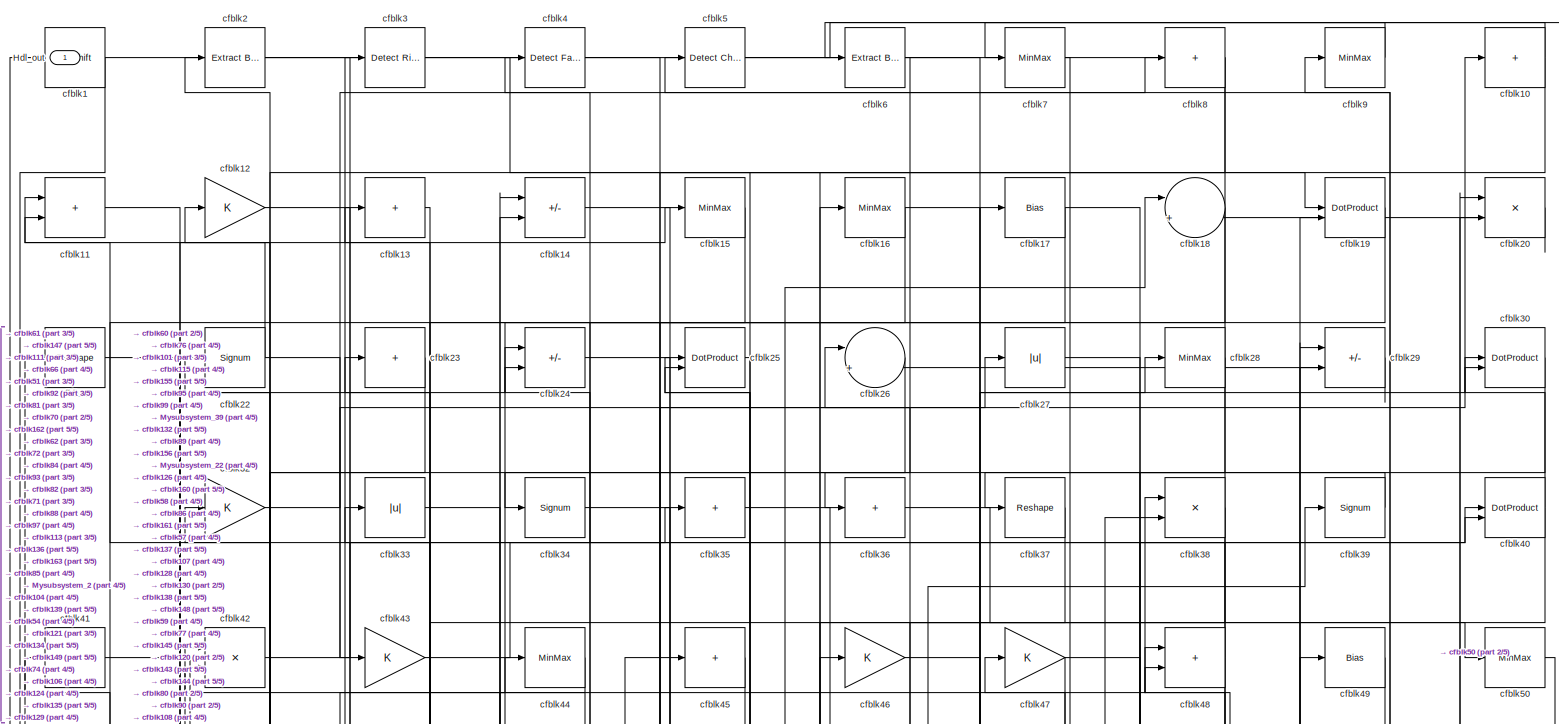
[diagram: root canvas - part 1/5, full width, top band]
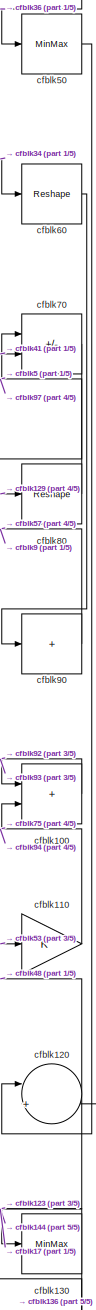
[diagram: root canvas - part 2/5, middle right region]
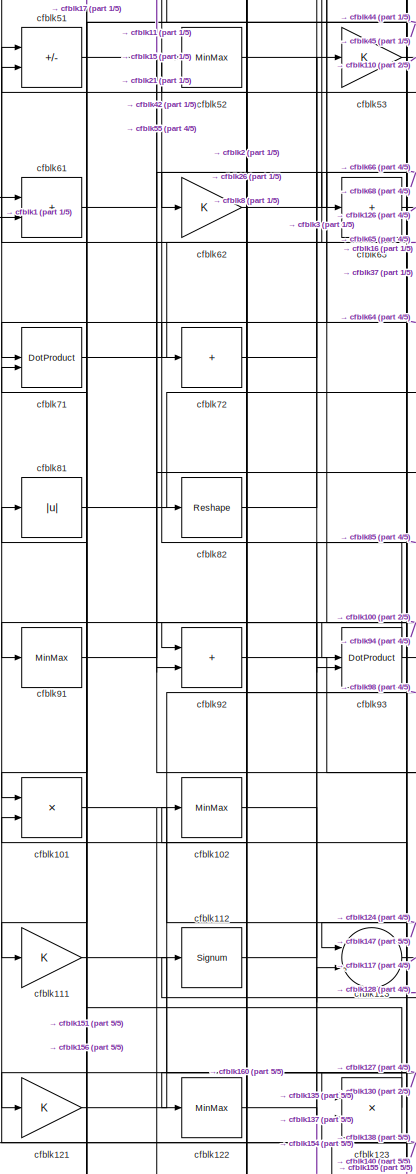
[diagram: root canvas - part 3/5, middle left region]
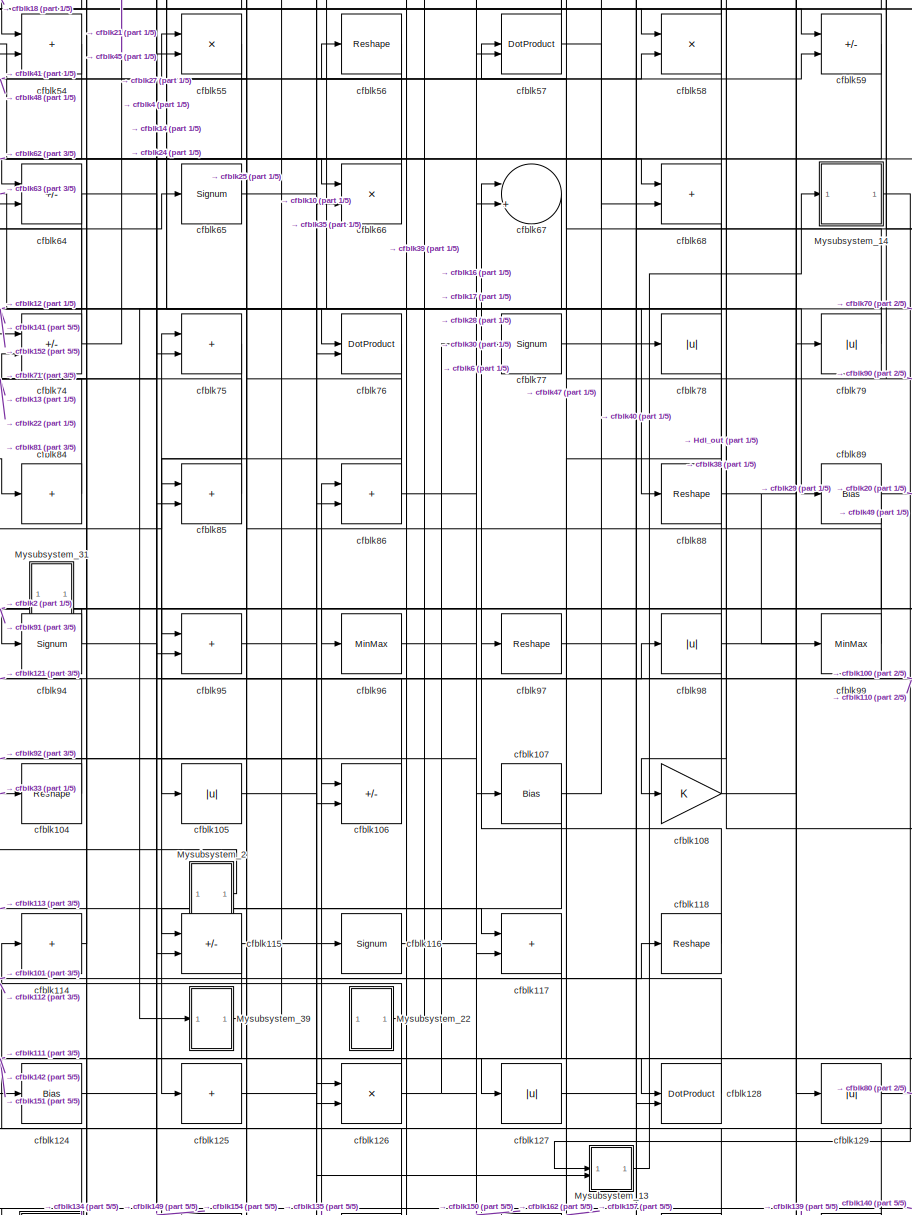
[diagram: root canvas - part 4/5, central region]
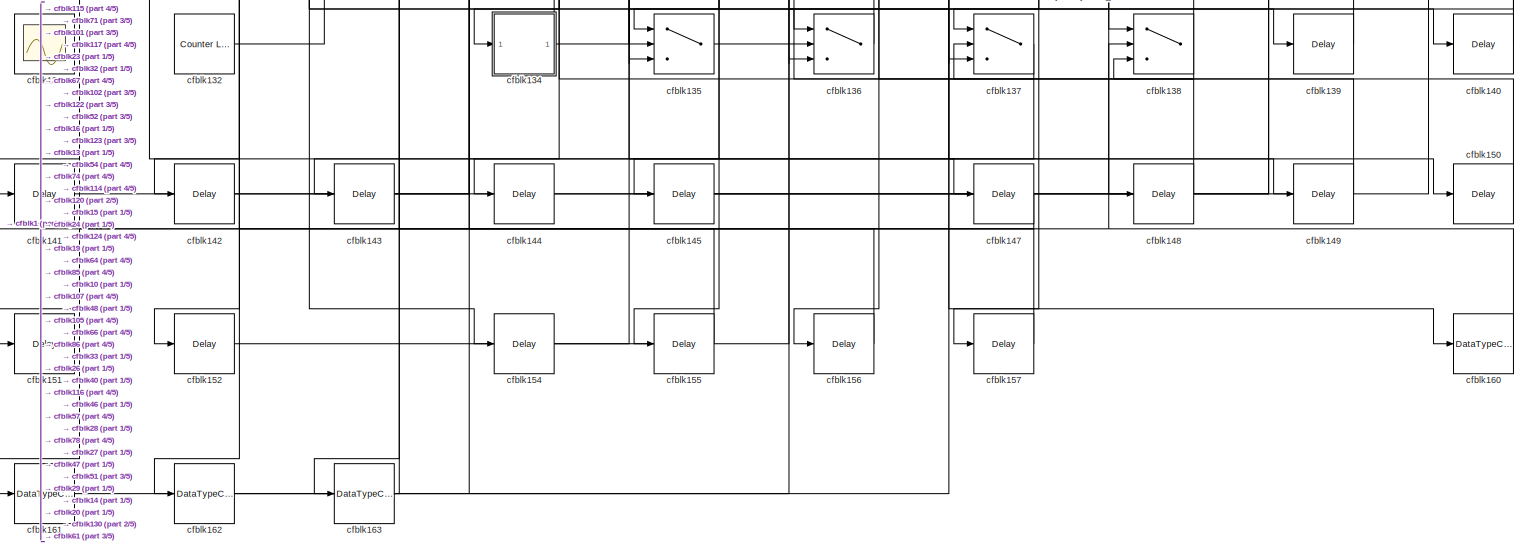
[diagram: root canvas - part 5/5, full width, bottom band]
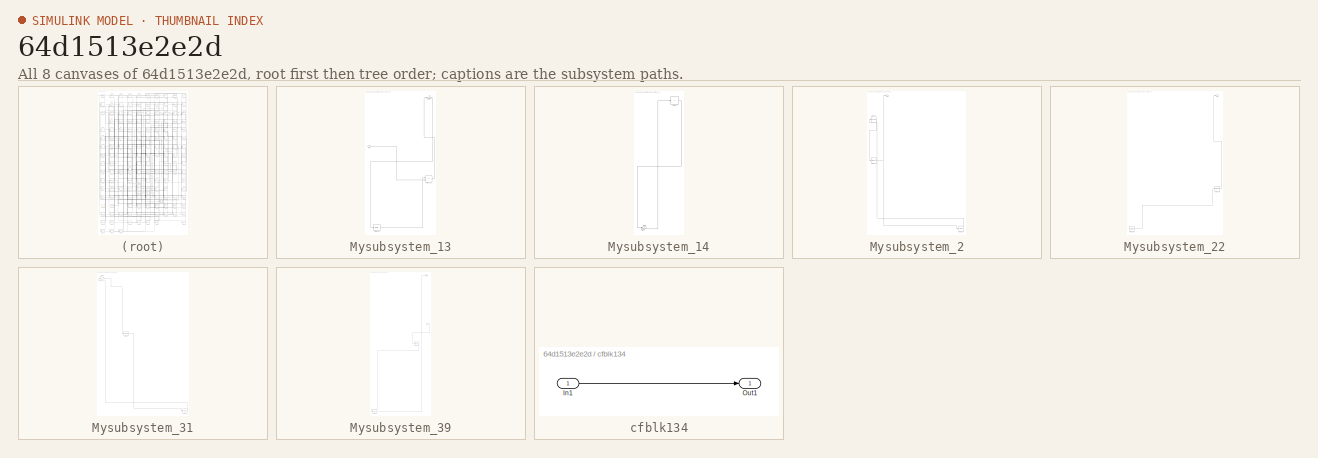
[diagram: thumbnail index - all 8 canvases of the model, root first then tree order]
MODEL slx_64d1513e2e2d
KIND model
CONFIG AbsTol = auto
CONFIG EnableMultiTasking = off
CONFIG FixedStep = auto
CONFIG MaxStep = auto
CONFIG MinStep = auto
CONFIG RelTol = 1e-3
CONFIG SampleTimeConstraint = Unconstrained
CONFIG SolverName = VariableStepAuto
CONFIG StartTime = 0.0
CONFIG StopTime = 10.0
BLOCK [Outport] Hdl_out
  OutDataTypeStr = uint8
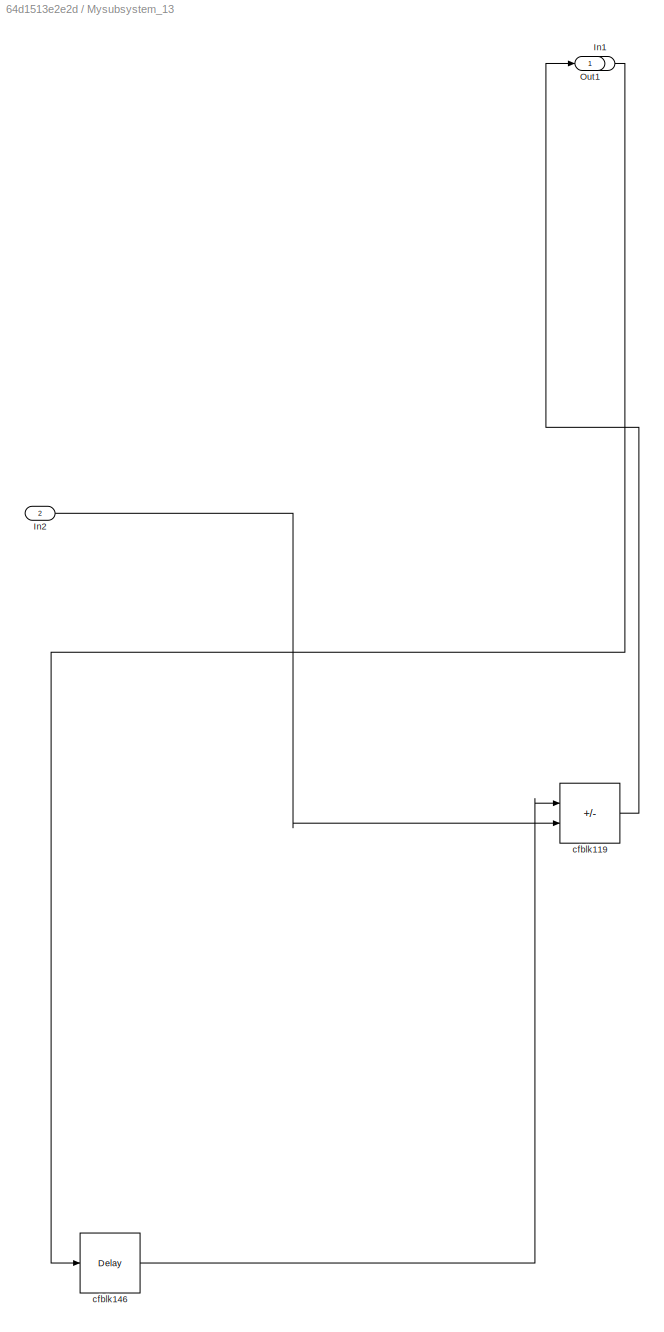
BLOCK [SubSystem] Mysubsystem_13
  RTWFcnName = Mysubsystem_13
  RTWFcnNameOpts = User specified
  RTWFileNameOpts = Use function name
  RTWSystemCode = Reusable function
  TreatAsAtomicUnit = on
BLOCK [Inport] Mysubsystem_13/In1
BLOCK [Inport] Mysubsystem_13/In2
  Port = 2
BLOCK [Outport] Mysubsystem_13/Out1
BLOCK [Sum] Mysubsystem_13/cfblk119
  IconShape = rectangular
  Inputs = +-
BLOCK [Delay] Mysubsystem_13/cfblk146
  InputPortMap = u0
  SampleTime = 1
BLOCK [SubSystem] Mysubsystem_14
  RTWFcnName = Mysubsystem_14
  RTWFcnNameOpts = User specified
  RTWFileNameOpts = Use function name
  RTWSystemCode = Reusable function
  TreatAsAtomicUnit = on
BLOCK [Inport] Mysubsystem_14/In1
BLOCK [Outport] Mysubsystem_14/Out1
BLOCK [Sum] Mysubsystem_14/cfblk69
  IconShape = rectangular
  Inputs = +
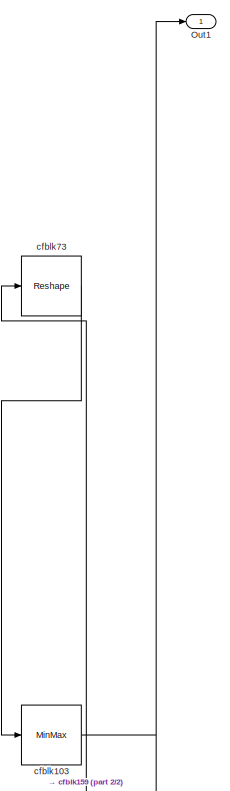
[diagram: Mysubsystem_2 - part 1/2, top left region]
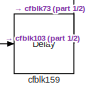
[diagram: Mysubsystem_2 - part 2/2, bottom right region]
BLOCK [SubSystem] Mysubsystem_2
  RTWFcnName = Mysubsystem_2
  RTWFcnNameOpts = User specified
  RTWFileNameOpts = Use function name
  RTWSystemCode = Reusable function
  TreatAsAtomicUnit = on
BLOCK [Outport] Mysubsystem_2/Out1
BLOCK [MinMax] Mysubsystem_2/cfblk103
BLOCK [Delay] Mysubsystem_2/cfblk159
  InputPortMap = u0
  SampleTime = 1
BLOCK [Reshape] Mysubsystem_2/cfblk73
BLOCK [SubSystem] Mysubsystem_22
  RTWFcnName = Mysubsystem_22
  RTWFcnNameOpts = User specified
  RTWFileNameOpts = Use function name
  RTWSystemCode = Reusable function
  TreatAsAtomicUnit = on
BLOCK [Outport] Mysubsystem_22/Out1
BLOCK [MinMax] Mysubsystem_22/cfblk109
BLOCK [Reference] Mysubsystem_22/cfblk133  REF=hdlsllib/Sources/Counter
Free-Running
  SourceBlock = hdlsllib/Sources/Counter\nFree-Running
  SourceType = Counter Free-Running
BLOCK [SubSystem] Mysubsystem_31
  RTWFcnName = Mysubsystem_31
  RTWFcnNameOpts = User specified
  RTWFileNameOpts = Use function name
  RTWSystemCode = Reusable function
  TreatAsAtomicUnit = on
BLOCK [Delay] Mysubsystem_31/cfblk158
  InputPortMap = u0
  SampleTime = 1
BLOCK [Gain] Mysubsystem_31/cfblk31
BLOCK [Reshape] Mysubsystem_31/cfblk83
BLOCK [SubSystem] Mysubsystem_39
  RTWFcnName = Mysubsystem_39
  RTWFcnNameOpts = User specified
  RTWFileNameOpts = Use function name
  RTWSystemCode = Reusable function
  TreatAsAtomicUnit = on
BLOCK [Inport] Mysubsystem_39/In1
BLOCK [Outport] Mysubsystem_39/Out1
BLOCK [Delay] Mysubsystem_39/cfblk153
  InputPortMap = u0
  SampleTime = 1
BLOCK [MinMax] Mysubsystem_39/cfblk87
BLOCK [Reference] cfblk1  REF=hdlsllib/Logic and Bit
Operations/Bit Shift
  SourceBlock = hdlsllib/Logic and Bit\nOperations/Bit Shift
  SourceType = Bit Shift
BLOCK [Sum] cfblk10
  IconShape = rectangular
  Inputs = +
  OutDataTypeStr = uint8
BLOCK [Sum] cfblk100
  IconShape = rectangular
  OutDataTypeStr = uint8
BLOCK [Product] cfblk101
  Inputs = */
  OutDataTypeStr = uint8
  RndMeth = Zero
  SaturateOnIntegerOverflow = on
BLOCK [MinMax] cfblk102
  OutDataTypeStr = uint8
BLOCK [Reshape] cfblk104
BLOCK [Abs] cfblk105
  OutDataTypeStr = uint8
  SaturateOnIntegerOverflow = off
BLOCK [Sum] cfblk106
  IconShape = rectangular
  Inputs = +-
  OutDataTypeStr = uint8
BLOCK [Bias] cfblk107
  Bias = 0.0
  SaturateOnIntegerOverflow = off
BLOCK [Gain] cfblk108
  OutDataTypeStr = uint8
BLOCK [Sum] cfblk11
  IconShape = rectangular
  OutDataTypeStr = uint8
BLOCK [Gain] cfblk110
  OutDataTypeStr = uint8
BLOCK [Gain] cfblk111
  OutDataTypeStr = uint8
BLOCK [Signum] cfblk112
BLOCK [Sum] cfblk113
  Inputs = |++
  OutDataTypeStr = uint8
BLOCK [Sum] cfblk114
  IconShape = rectangular
  Inputs = +
  OutDataTypeStr = uint8
BLOCK [Sum] cfblk115
  IconShape = rectangular
  Inputs = +-
  OutDataTypeStr = uint8
BLOCK [Signum] cfblk116
BLOCK [Sum] cfblk117
  IconShape = rectangular
  OutDataTypeStr = uint8
BLOCK [Reshape] cfblk118
BLOCK [Gain] cfblk12
  OutDataTypeStr = uint8
BLOCK [Sum] cfblk120
  Inputs = |++
  OutDataTypeStr = uint8
BLOCK [Gain] cfblk121
  OutDataTypeStr = uint8
BLOCK [MinMax] cfblk122
  OutDataTypeStr = uint8
BLOCK [Product] cfblk123
  Inputs = */
  OutDataTypeStr = uint8
  RndMeth = Zero
  SaturateOnIntegerOverflow = on
BLOCK [Bias] cfblk124
  Bias = 0.0
  SaturateOnIntegerOverflow = off
BLOCK [Sum] cfblk125
  IconShape = rectangular
  Inputs = +
  OutDataTypeStr = uint8
BLOCK [Product] cfblk126
  Inputs = */
  OutDataTypeStr = uint8
  RndMeth = Zero
  SaturateOnIntegerOverflow = on
BLOCK [Abs] cfblk127
  OutDataTypeStr = uint8
  SaturateOnIntegerOverflow = off
BLOCK [DotProduct] cfblk128
  OutDataTypeStr = uint8
BLOCK [Abs] cfblk129
  OutDataTypeStr = uint8
  SaturateOnIntegerOverflow = off
BLOCK [Sum] cfblk13
  IconShape = rectangular
  Inputs = +
  OutDataTypeStr = uint8
BLOCK [MinMax] cfblk130
  OutDataTypeStr = uint8
BLOCK [Scope] cfblk131
  Floating = on
  NumInputPorts = 1
  ScopeSpecificationString = Simulink.scopes.TimeScopeBlockCfg('CurrentConfiguration', extmgr.ConfigurationSet(extmgr.Configuration('Core','General UI',true,'FigureColor',[0.156862745098039 0.156862745098039 0.156862745098039]),extmgr.Configuration('Core','Source UI',true),extmgr.Configuration('Sources','WiredSimulink',true,'DataLoggingVariableName','ScopeData1','DataLoggingSaveFormat','StructureWithTime','DataLoggingLimitDat...<+2713ch>
BLOCK [Reference] cfblk132  REF=hdlsllib/Sources/Counter
Limited
  SourceBlock = hdlsllib/Sources/Counter\nLimited
  SourceType = Counter Limited
BLOCK [SubSystem] cfblk134
  LibrarySourceBlock = hdlsllib/Ports &\nSubsystems/Subsystem
BLOCK [Inport] cfblk134/In1
BLOCK [Outport] cfblk134/Out1
BLOCK [Switch] cfblk135
  InputSameDT = off
  OutDataTypeStr = uint8
  SaturateOnIntegerOverflow = off
BLOCK [Switch] cfblk136
  InputSameDT = off
  OutDataTypeStr = uint8
  SaturateOnIntegerOverflow = off
BLOCK [Switch] cfblk137
  InputSameDT = off
  OutDataTypeStr = uint8
  SaturateOnIntegerOverflow = off
BLOCK [Switch] cfblk138
  InputSameDT = off
  OutDataTypeStr = uint8
  SaturateOnIntegerOverflow = off
BLOCK [Delay] cfblk139
  InputPortMap = u0
  SampleTime = 1
BLOCK [Sum] cfblk14
  IconShape = rectangular
  Inputs = +-
  OutDataTypeStr = uint8
BLOCK [Delay] cfblk140
  InputPortMap = u0
  SampleTime = 1
BLOCK [Delay] cfblk141
  InputPortMap = u0
  SampleTime = 1
BLOCK [Delay] cfblk142
  InputPortMap = u0
  SampleTime = 1
BLOCK [Delay] cfblk143
  InputPortMap = u0
  SampleTime = 1
BLOCK [Delay] cfblk144
  InputPortMap = u0
  SampleTime = 1
BLOCK [Delay] cfblk145
  InputPortMap = u0
  SampleTime = 1
BLOCK [Delay] cfblk147
  InputPortMap = u0
  SampleTime = 1
BLOCK [Delay] cfblk148
  InputPortMap = u0
  SampleTime = 1
BLOCK [Delay] cfblk149
  InputPortMap = u0
  SampleTime = 1
BLOCK [MinMax] cfblk15
  OutDataTypeStr = uint8
BLOCK [Delay] cfblk150
  InputPortMap = u0
  SampleTime = 1
BLOCK [Delay] cfblk151
  InputPortMap = u0
  SampleTime = 1
BLOCK [Delay] cfblk152
  InputPortMap = u0
  SampleTime = 1
BLOCK [Delay] cfblk154
  InputPortMap = u0
  SampleTime = 1
BLOCK [Delay] cfblk155
  InputPortMap = u0
  SampleTime = 1
BLOCK [Delay] cfblk156
  InputPortMap = u0
  SampleTime = 1
BLOCK [Delay] cfblk157
  InputPortMap = u0
  SampleTime = 1
BLOCK [MinMax] cfblk16
  OutDataTypeStr = uint8
BLOCK [DataTypeConversion] cfblk160
  OutDataTypeStr = uint8
  RndMeth = Floor
  SaturateOnIntegerOverflow = off
BLOCK [DataTypeConversion] cfblk161
  OutDataTypeStr = uint8
  RndMeth = Floor
  SaturateOnIntegerOverflow = off
BLOCK [DataTypeConversion] cfblk162
  OutDataTypeStr = uint8
  RndMeth = Floor
  SaturateOnIntegerOverflow = off
BLOCK [DataTypeConversion] cfblk163
  OutDataTypeStr = uint8
  RndMeth = Floor
  SaturateOnIntegerOverflow = off
BLOCK [Bias] cfblk17
  Bias = 0.0
  SaturateOnIntegerOverflow = off
BLOCK [Sum] cfblk18
  Inputs = |++
  OutDataTypeStr = uint8
BLOCK [DotProduct] cfblk19
  OutDataTypeStr = uint8
BLOCK [Reference] cfblk2  REF=simulink/Logic and Bit
Operations/Extract Bits
  LibrarySourceBlock = hdlsllib/Logic and Bit\nOperations/Extract Bits
  SourceBlock = simulink/Logic and Bit\nOperations/Extract Bits
  SourceType = Extract Bits
BLOCK [Product] cfblk20
  Inputs = */
  OutDataTypeStr = uint8
  RndMeth = Zero
  SaturateOnIntegerOverflow = on
BLOCK [Reshape] cfblk21
BLOCK [Signum] cfblk22
BLOCK [Sum] cfblk23
  IconShape = rectangular
  Inputs = +
  OutDataTypeStr = uint8
BLOCK [Sum] cfblk24
  IconShape = rectangular
  Inputs = +-
  OutDataTypeStr = uint8
BLOCK [DotProduct] cfblk25
  OutDataTypeStr = uint8
BLOCK [Sum] cfblk26
  Inputs = |++
  OutDataTypeStr = uint8
BLOCK [Abs] cfblk27
  OutDataTypeStr = uint8
  SaturateOnIntegerOverflow = off
BLOCK [MinMax] cfblk28
  OutDataTypeStr = uint8
BLOCK [Sum] cfblk29
  IconShape = rectangular
  Inputs = +-
  OutDataTypeStr = uint8
BLOCK [Reference] cfblk3  REF=hdlsllib/Logic and Bit
Operations/Detect Rise
Positive
  SourceBlock = hdlsllib/Logic and Bit\nOperations/Detect Rise\nPositive
  SourceType = Detect Rise Positive
BLOCK [DotProduct] cfblk30
  OutDataTypeStr = uint8
BLOCK [Gain] cfblk32
  OutDataTypeStr = uint8
BLOCK [Abs] cfblk33
  OutDataTypeStr = uint8
  SaturateOnIntegerOverflow = off
BLOCK [Signum] cfblk34
BLOCK [Sum] cfblk35
  IconShape = rectangular
  Inputs = +
  OutDataTypeStr = uint8
BLOCK [Sum] cfblk36
  IconShape = rectangular
  Inputs = +
  OutDataTypeStr = uint8
BLOCK [Reshape] cfblk37
BLOCK [Product] cfblk38
  Inputs = */
  OutDataTypeStr = uint8
  RndMeth = Zero
  SaturateOnIntegerOverflow = on
BLOCK [Signum] cfblk39
BLOCK [Reference] cfblk4  REF=hdlsllib/Logic and Bit
Operations/Detect Fall
Nonpositive
  SourceBlock = hdlsllib/Logic and Bit\nOperations/Detect Fall\nNonpositive
  SourceType = Detect Fall Nonpositive
BLOCK [DotProduct] cfblk40
  OutDataTypeStr = uint8
BLOCK [Sum] cfblk41
  IconShape = rectangular
  Inputs = +
  OutDataTypeStr = uint8
BLOCK [Product] cfblk42
  Inputs = */
  OutDataTypeStr = uint8
  RndMeth = Zero
  SaturateOnIntegerOverflow = on
BLOCK [Gain] cfblk43
  OutDataTypeStr = uint8
BLOCK [MinMax] cfblk44
  OutDataTypeStr = uint8
BLOCK [Sum] cfblk45
  IconShape = rectangular
  Inputs = +
  OutDataTypeStr = uint8
BLOCK [Gain] cfblk46
  OutDataTypeStr = uint8
BLOCK [Gain] cfblk47
  OutDataTypeStr = uint8
BLOCK [Sum] cfblk48
  IconShape = rectangular
  OutDataTypeStr = uint8
BLOCK [Bias] cfblk49
  Bias = 0.0
  SaturateOnIntegerOverflow = off
BLOCK [Reference] cfblk5  REF=simulink/Logic and Bit
Operations/Detect
Change
  LibrarySourceBlock = hdlsllib/Logic and Bit\nOperations/Detect\nChange
  SourceBlock = simulink/Logic and Bit\nOperations/Detect\nChange
  SourceType = Detect Change
BLOCK [MinMax] cfblk50
  OutDataTypeStr = uint8
BLOCK [Sum] cfblk51
  IconShape = rectangular
  Inputs = +-
  OutDataTypeStr = uint8
BLOCK [MinMax] cfblk52
  OutDataTypeStr = uint8
BLOCK [Gain] cfblk53
  OutDataTypeStr = uint8
BLOCK [Sum] cfblk54
  IconShape = rectangular
  OutDataTypeStr = uint8
BLOCK [Product] cfblk55
  Inputs = */
  OutDataTypeStr = uint8
  RndMeth = Zero
  SaturateOnIntegerOverflow = on
BLOCK [Reshape] cfblk56
BLOCK [DotProduct] cfblk57
  OutDataTypeStr = uint8
BLOCK [Product] cfblk58
  Inputs = */
  OutDataTypeStr = uint8
  RndMeth = Zero
  SaturateOnIntegerOverflow = on
BLOCK [Sum] cfblk59
  IconShape = rectangular
  Inputs = +-
  OutDataTypeStr = uint8
BLOCK [Reference] cfblk6  REF=simulink/Logic and Bit
Operations/Extract Bits
  LibrarySourceBlock = hdlsllib/Logic and Bit\nOperations/Extract Bits
  SourceBlock = simulink/Logic and Bit\nOperations/Extract Bits
  SourceType = Extract Bits
BLOCK [Reshape] cfblk60
BLOCK [Sum] cfblk61
  IconShape = rectangular
  OutDataTypeStr = uint8
BLOCK [Gain] cfblk62
  OutDataTypeStr = uint8
BLOCK [Sum] cfblk63
  IconShape = rectangular
  Inputs = +
  OutDataTypeStr = uint8
BLOCK [Sum] cfblk64
  IconShape = rectangular
  Inputs = +-
  OutDataTypeStr = uint8
BLOCK [Signum] cfblk65
BLOCK [Product] cfblk66
  Inputs = */
  OutDataTypeStr = uint8
  RndMeth = Zero
  SaturateOnIntegerOverflow = on
BLOCK [Sum] cfblk67
  Inputs = |++
  OutDataTypeStr = uint8
BLOCK [Sum] cfblk68
  IconShape = rectangular
  OutDataTypeStr = uint8
BLOCK [MinMax] cfblk7
  OutDataTypeStr = uint8
BLOCK [Sum] cfblk70
  IconShape = rectangular
  Inputs = +-
  OutDataTypeStr = uint8
BLOCK [DotProduct] cfblk71
  OutDataTypeStr = uint8
BLOCK [Sum] cfblk72
  IconShape = rectangular
  Inputs = +
  OutDataTypeStr = uint8
BLOCK [Sum] cfblk74
  IconShape = rectangular
  Inputs = +-
  OutDataTypeStr = uint8
BLOCK [Sum] cfblk75
  IconShape = rectangular
  OutDataTypeStr = uint8
BLOCK [DotProduct] cfblk76
  OutDataTypeStr = uint8
BLOCK [Signum] cfblk77
BLOCK [Abs] cfblk78
  OutDataTypeStr = uint8
  SaturateOnIntegerOverflow = off
BLOCK [Abs] cfblk79
  OutDataTypeStr = uint8
  SaturateOnIntegerOverflow = off
BLOCK [Sum] cfblk8
  IconShape = rectangular
  Inputs = +
  OutDataTypeStr = uint8
BLOCK [Reshape] cfblk80
BLOCK [Abs] cfblk81
  OutDataTypeStr = uint8
  SaturateOnIntegerOverflow = off
BLOCK [Reshape] cfblk82
BLOCK [Sum] cfblk84
  IconShape = rectangular
  Inputs = +
  OutDataTypeStr = uint8
BLOCK [Sum] cfblk85
  IconShape = rectangular
  OutDataTypeStr = uint8
BLOCK [Sum] cfblk86
  IconShape = rectangular
  OutDataTypeStr = uint8
BLOCK [Reshape] cfblk88
BLOCK [Bias] cfblk89
  Bias = 0.0
  SaturateOnIntegerOverflow = off
BLOCK [MinMax] cfblk9
  OutDataTypeStr = uint8
BLOCK [Sum] cfblk90
  IconShape = rectangular
  Inputs = +
  OutDataTypeStr = uint8
BLOCK [MinMax] cfblk91
  OutDataTypeStr = uint8
BLOCK [Sum] cfblk92
  IconShape = rectangular
  OutDataTypeStr = uint8
BLOCK [DotProduct] cfblk93
  OutDataTypeStr = uint8
BLOCK [Signum] cfblk94
BLOCK [Sum] cfblk95
  IconShape = rectangular
  OutDataTypeStr = uint8
BLOCK [MinMax] cfblk96
  OutDataTypeStr = uint8
BLOCK [Reshape] cfblk97
BLOCK [Abs] cfblk98
  OutDataTypeStr = uint8
  SaturateOnIntegerOverflow = off
BLOCK [MinMax] cfblk99
  OutDataTypeStr = uint8
LINE Mysubsystem_13/In1:1 -> Mysubsystem_13/cfblk146:1
LINE Mysubsystem_13/In2:1 -> Mysubsystem_13/cfblk119:2
LINE Mysubsystem_13/cfblk119:1 -> Mysubsystem_13/Out1:1
LINE Mysubsystem_13/cfblk146:1 -> Mysubsystem_13/cfblk119:1
LINE Mysubsystem_13:1 -> Mysubsystem_14:1
LINE Mysubsystem_14/In1:1 -> Mysubsystem_14/cfblk69:1
LINE Mysubsystem_14/cfblk69:1 -> Mysubsystem_14/Out1:1
LINE Mysubsystem_14:1 -> Mysubsystem_13:1
NET Mysubsystem_2/cfblk103:1 -> Mysubsystem_2/Out1:1, Mysubsystem_2/cfblk159:1
LINE Mysubsystem_2/cfblk159:1 -> Mysubsystem_2/cfblk73:1
LINE Mysubsystem_2/cfblk73:1 -> Mysubsystem_2/cfblk103:1
LINE Mysubsystem_22/cfblk109:1 -> Mysubsystem_22/Out1:1
LINE Mysubsystem_22/cfblk133:1 -> Mysubsystem_22/cfblk109:1
LINE Mysubsystem_22:1 -> cfblk39:1
NET Mysubsystem_2:1 -> cfblk48:1, cfblk58:2
LINE Mysubsystem_31/cfblk158:1 -> Mysubsystem_31/cfblk31:1
LINE Mysubsystem_31/cfblk31:1 -> Mysubsystem_31/cfblk83:1
LINE Mysubsystem_31/cfblk83:1 -> Mysubsystem_31/cfblk158:1
LINE Mysubsystem_39/In1:1 -> Mysubsystem_39/cfblk87:1
LINE Mysubsystem_39/cfblk153:1 -> Mysubsystem_39/Out1:1
LINE Mysubsystem_39/cfblk87:1 -> Mysubsystem_39/cfblk153:1
LINE Mysubsystem_39:1 -> cfblk18:1
LINE cfblk100:1 -> cfblk92:1
NET cfblk101:1 -> cfblk124:1, cfblk147:1
NET cfblk102:1 -> cfblk135:2, cfblk82:1
LINE cfblk104:1 -> cfblk12:1
LINE cfblk105:1 -> cfblk139:1
LINE cfblk106:1 -> cfblk55:1
NET cfblk107:1 -> cfblk135:1, cfblk38:2
NET cfblk108:1 -> Hdl_out:1, cfblk29:2
NET cfblk10:1 -> cfblk115:2, cfblk155:1, cfblk76:2, cfblk7:1
LINE cfblk110:1 -> cfblk75:1
LINE cfblk111:1 -> cfblk127:1
LINE cfblk112:1 -> cfblk85:1
LINE cfblk113:1 -> cfblk117:1
LINE cfblk114:1 -> cfblk74:2
NET cfblk115:1 -> cfblk116:1, cfblk151:1
NET cfblk116:1 -> cfblk128:1, cfblk150:1
LINE cfblk117:1 -> cfblk142:1
LINE cfblk118:1 -> cfblk67:1
LINE cfblk11:1 -> cfblk92:2
NET cfblk120:1 -> cfblk144:1, cfblk48:2
LINE cfblk121:1 -> cfblk98:1
NET cfblk122:1 -> cfblk154:1, cfblk52:1
NET cfblk123:1 -> cfblk122:1, cfblk81:1
NET cfblk124:1 -> cfblk149:1, cfblk27:1
LINE cfblk125:1 -> cfblk118:1
NET cfblk126:1 -> cfblk112:1, cfblk28:1, cfblk77:1
LINE cfblk127:1 -> cfblk78:1
LINE cfblk128:1 -> cfblk101:2
LINE cfblk129:1 -> cfblk80:1
LINE cfblk12:1 -> cfblk88:1
NET cfblk130:1 -> cfblk123:1, cfblk136:3
LINE cfblk132:1 -> cfblk16:1
LINE cfblk134/In1:1 -> cfblk134/Out1:1
NET cfblk134:1 -> cfblk114:1, cfblk136:1
LINE cfblk135:1 -> cfblk86:1
LINE cfblk136:1 -> cfblk33:1
NET cfblk137:1 -> cfblk136:2, cfblk143:1
NET cfblk138:1 -> cfblk137:2, cfblk51:1
LINE cfblk139:1 -> cfblk14:1
LINE cfblk13:1 -> cfblk163:1
LINE cfblk140:1 -> cfblk61:1
LINE cfblk141:1 -> cfblk54:2
LINE cfblk142:1 -> cfblk64:2
LINE cfblk143:1 -> cfblk19:2
LINE cfblk144:1 -> cfblk29:1
LINE cfblk145:1 -> cfblk20:2
LINE cfblk147:1 -> cfblk1:1
LINE cfblk148:1 -> cfblk26:1
LINE cfblk149:1 -> cfblk24:2
LINE cfblk14:1 -> cfblk76:1
LINE cfblk150:1 -> cfblk138:3
LINE cfblk151:1 -> cfblk51:2
LINE cfblk152:1 -> cfblk66:2
LINE cfblk154:1 -> cfblk85:2
LINE cfblk155:1 -> cfblk123:2
LINE cfblk156:1 -> cfblk71:2
LINE cfblk157:1 -> cfblk74:1
LINE cfblk15:1 -> cfblk134:1
NET cfblk160:1 -> cfblk102:1, cfblk138:2, cfblk32:1
LINE cfblk161:1 -> cfblk46:1
NET cfblk162:1 -> cfblk14:2, cfblk57:2
LINE cfblk163:1 -> cfblk23:1
NET cfblk16:1 -> cfblk113:1, cfblk58:1
NET cfblk17:1 -> cfblk111:1, cfblk130:1, cfblk59:1
LINE cfblk18:1 -> cfblk54:1
LINE cfblk19:1 -> cfblk135:3
LINE cfblk1:1 -> cfblk61:2
LINE cfblk20:1 -> cfblk18:2
NET cfblk21:1 -> cfblk106:2, cfblk84:1, cfblk93:2
NET cfblk22:1 -> cfblk11:2, cfblk43:1
LINE cfblk23:1 -> cfblk162:1
LINE cfblk24:1 -> cfblk129:1
LINE cfblk25:1 -> cfblk95:1
LINE cfblk26:1 -> cfblk62:1
LINE cfblk27:1 -> cfblk148:1
LINE cfblk28:1 -> cfblk137:1
LINE cfblk29:1 -> cfblk26:2
LINE cfblk2:1 -> cfblk97:1
LINE cfblk30:1 -> cfblk128:2
LINE cfblk32:1 -> cfblk8:1
LINE cfblk33:1 -> cfblk104:1
LINE cfblk34:1 -> cfblk60:1
LINE cfblk35:1 -> cfblk89:1
LINE cfblk36:1 -> cfblk50:1
LINE cfblk37:1 -> cfblk93:1
LINE cfblk38:1 -> cfblk126:2
LINE cfblk39:1 -> cfblk34:1
LINE cfblk3:1 -> cfblk19:1
NET cfblk40:1 -> cfblk10:1, cfblk156:1
NET cfblk41:1 -> cfblk24:1, cfblk70:2
NET cfblk42:1 -> cfblk30:1, cfblk40:1
LINE cfblk43:1 -> cfblk35:1
NET cfblk44:1 -> cfblk121:1, cfblk42:2
LINE cfblk45:1 -> cfblk101:1
LINE cfblk46:1 -> cfblk160:1
NET cfblk47:1 -> cfblk138:1, cfblk161:1
NET cfblk48:1 -> cfblk11:1, cfblk145:1, cfblk4:1
LINE cfblk49:1 -> cfblk108:1
LINE cfblk4:1 -> cfblk106:1
LINE cfblk50:1 -> cfblk120:1
LINE cfblk51:1 -> cfblk15:1
NET cfblk52:1 -> cfblk113:2, cfblk137:3
LINE cfblk53:1 -> cfblk110:1
LINE cfblk54:1 -> cfblk64:1
LINE cfblk55:1 -> cfblk95:2
LINE cfblk56:1 -> cfblk94:1
NET cfblk57:1 -> cfblk47:1, cfblk68:2
LINE cfblk58:1 -> cfblk38:1
LINE cfblk59:1 -> cfblk115:1
LINE cfblk5:1 -> cfblk120:2
LINE cfblk60:1 -> cfblk90:1
LINE cfblk61:1 -> cfblk63:1
NET cfblk62:1 -> cfblk66:1, cfblk68:1
LINE cfblk63:1 -> cfblk126:1
NET cfblk64:1 -> cfblk140:1, cfblk141:1, cfblk71:1
LINE cfblk65:1 -> cfblk86:2
LINE cfblk66:1 -> cfblk41:1
LINE cfblk67:1 -> cfblk152:1
LINE cfblk68:1 -> Mysubsystem_39:1
NET cfblk6:1 -> cfblk107:1, cfblk36:1
LINE cfblk70:1 -> cfblk75:2
LINE cfblk71:1 -> cfblk3:1
LINE cfblk72:1 -> cfblk53:1
NET cfblk74:1 -> cfblk21:1, cfblk45:1
LINE cfblk75:1 -> cfblk125:1
LINE cfblk76:1 -> cfblk105:1
LINE cfblk77:1 -> cfblk40:2
LINE cfblk78:1 -> cfblk157:1
LINE cfblk79:1 -> cfblk56:1
LINE cfblk7:1 -> cfblk37:1
LINE cfblk80:1 -> cfblk5:1
NET cfblk81:1 -> cfblk42:1, cfblk55:2
LINE cfblk82:1 -> cfblk44:1
LINE cfblk84:1 -> cfblk22:1
LINE cfblk85:1 -> cfblk13:1
NET cfblk86:1 -> cfblk17:1, cfblk25:2, cfblk30:2
NET cfblk88:1 -> cfblk49:1, cfblk99:1
NET cfblk89:1 -> cfblk20:1, cfblk96:1
LINE cfblk8:1 -> cfblk72:1
NET cfblk90:1 -> cfblk57:1, cfblk9:1
LINE cfblk91:1 -> cfblk65:1
LINE cfblk92:1 -> cfblk117:2
NET cfblk93:1 -> cfblk100:1, cfblk2:1
NET cfblk94:1 -> cfblk100:2, cfblk91:1
NET cfblk95:1 -> Mysubsystem_13:2, cfblk59:2
LINE cfblk96:1 -> cfblk67:2
LINE cfblk97:1 -> cfblk70:1
LINE cfblk98:1 -> cfblk79:1
LINE cfblk99:1 -> cfblk25:1
LINE cfblk9:1 -> cfblk6:1
note: NET lines group one-source signal fan-out (src -> all destinations, sorted); 1:1 wires keep LINE
